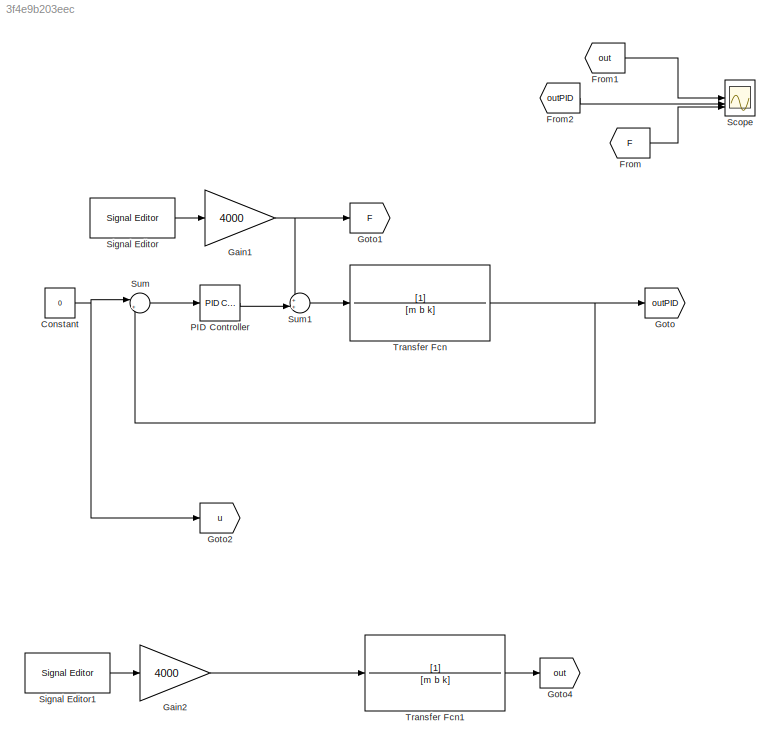
MODEL slx_3f4e9b203eec
KIND model
CONFIG AbsTol = auto
CONFIG EnableMultiTasking = off
CONFIG FixedStep = auto
CONFIG InitFcn = % Parametri del sistema massa-molla-smorzatore\nm = 250; b = 500; k = 20e3;\nF = -10;
CONFIG MaxStep = auto
CONFIG MinStep = auto
CONFIG RelTol = 1e-7
CONFIG SampleTimeConstraint = Unconstrained
CONFIG SolverName = VariableStepAuto
CONFIG StartTime = 0.0
CONFIG StopTime = 15
BLOCK [Constant] Constant
  Value = 0
BLOCK [From] From
  GotoTag = F
BLOCK [From] From1
  GotoTag = out
BLOCK [From] From2
  GotoTag = outPID
BLOCK [Gain] Gain1
  Gain = 4000
BLOCK [Gain] Gain2
  Gain = 4000
BLOCK [Goto] Goto
  GotoTag = outPID
BLOCK [Goto] Goto1
  GotoTag = F
BLOCK [Goto] Goto2
  GotoTag = u
BLOCK [Goto] Goto4
  GotoTag = out
BLOCK [Reference] PID Controller  REF=slpidlib/PID Controller
  LibrarySourceBlock = simulink/Continuous/PID Controller
  SourceBlock = slpidlib/PID Controller
  SourceType = PID 1dof
BLOCK [Scope] Scope
  Floating = off
  NumInputPorts = 3
  ScopeSpecificationString = Simulink.scopes.TimeScopeBlockCfg('CurrentConfiguration', extmgr.ConfigurationSet(extmgr.Configuration('Core','General UI',true),extmgr.Configuration('Core','Source UI',true),extmgr.Configuration('Sources','WiredSimulink',true),extmgr.Configuration('Visuals','Time Domain',true,'SerializedDisplays',{struct('MinYLimReal','-0.61059','MaxYLimReal','0.38851','YLabelReal','m','MinYLimMag','0.00000','Max...<+3060ch>
BLOCK [Reference] Signal Editor  REF=SignalEditorBlockLib/Signal Editor
  LibrarySourceBlock = simulink/Sources/Signal Editor
  SourceBlock = SignalEditorBlockLib/Signal Editor
  SourceType = SignalEditor
  UserDataPersistent = on
BLOCK [Reference] Signal Editor1  REF=SignalEditorBlockLib/Signal Editor
  LibrarySourceBlock = simulink/Sources/Signal Editor
  SourceBlock = SignalEditorBlockLib/Signal Editor
  SourceType = SignalEditor
  UserDataPersistent = on
BLOCK [Sum] Sum
  Inputs = |+-
BLOCK [Sum] Sum1
  Inputs = ++|
BLOCK [TransferFcn] Transfer Fcn
  Denominator = [m b k]
BLOCK [TransferFcn] Transfer Fcn1
  Denominator = [m b k]
NET Constant:1 -> Goto2:1, Sum:1
LINE From1:1 -> Scope:1
LINE From2:1 -> Scope:2
LINE From:1 -> Scope:3
NET Gain1:1 -> Goto1:1, Sum1:1
LINE Gain2:1 -> Transfer Fcn1:1
LINE PID Controller:1 -> Sum1:2
LINE Signal Editor1:1 -> Gain2:1
LINE Signal Editor:1 -> Gain1:1
LINE Sum1:1 -> Transfer Fcn:1
LINE Sum:1 -> PID Controller:1
LINE Transfer Fcn1:1 -> Goto4:1
NET Transfer Fcn:1 -> Goto:1, Sum:2
note: NET lines group one-source signal fan-out (src -> all destinations, sorted); 1:1 wires keep LINE
